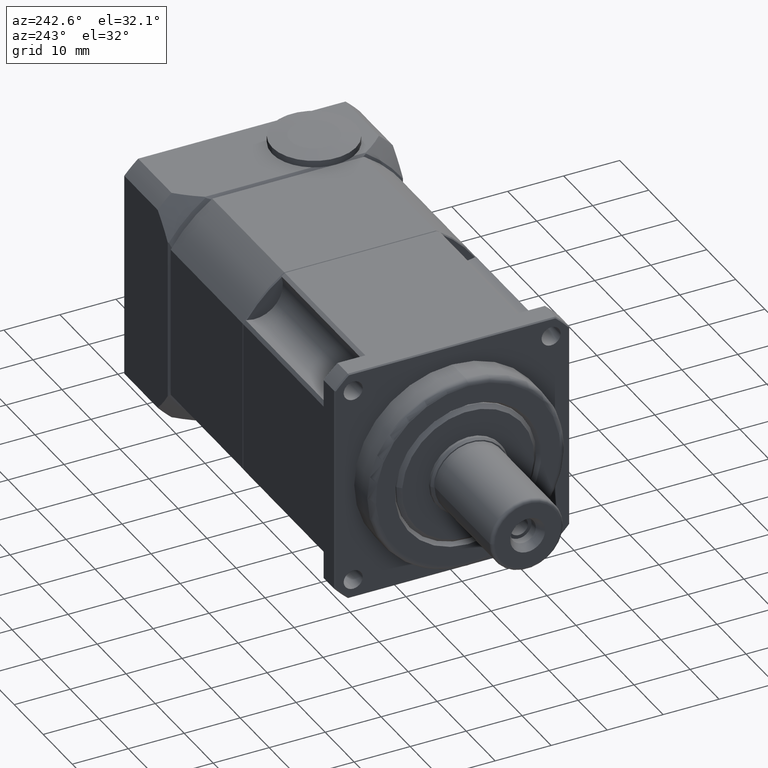
[diagram: clean part render]
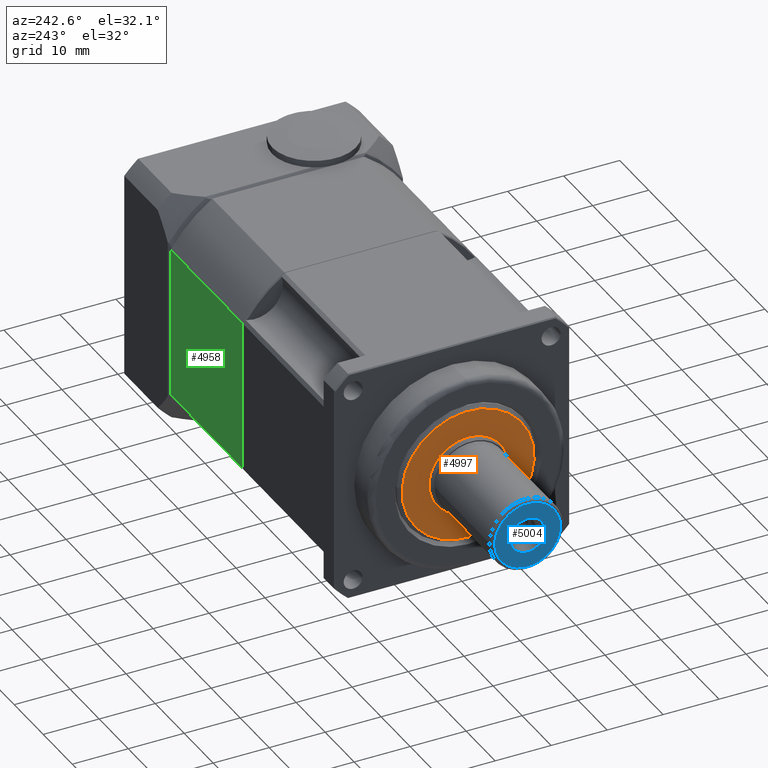
[diagram: same view with three faces highlighted in distinct colors, each labeled with its STEP entity id]
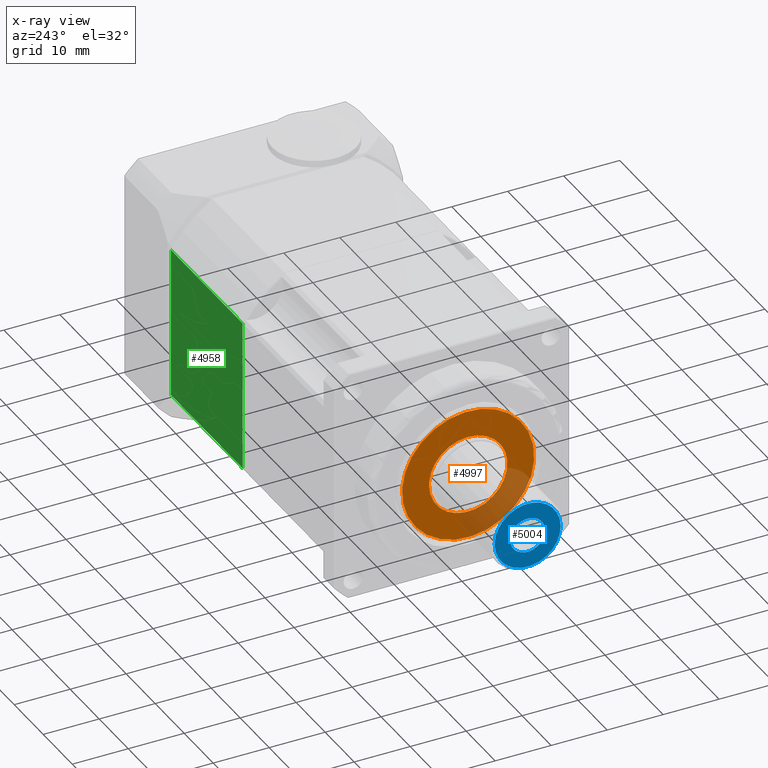
[diagram: x-ray of the same camera — body ghosted, the three highlighted faces saturated]
A machine part, auxiliary view with three faces highlighted in distinct colors.
The next image is the same camera in x-ray (body ghosted, the three faces saturated) — at least one of them is partly hidden behind the body in this view.
Their STEP definitions:

[orange] entity #4997 — the highlighted planar face has unit normal (-1, -0, 0).
#802=PLANE('',#5559);
#939=FACE_BOUND('',#1632,.T.);
#1210=FACE_OUTER_BOUND('',#1631,.T.);
#1631=EDGE_LOOP('',(#4069));
#1632=EDGE_LOOP('',(#4070));
#2012=CIRCLE('',#5558,11.8);
#2013=CIRCLE('',#5560,6.99999999999999);
#2407=VERTEX_POINT('',#8544);
#2408=VERTEX_POINT('',#8547);
#2996=EDGE_CURVE('',#2407,#2407,#2012,.T.);
#2997=EDGE_CURVE('',#2408,#2408,#2013,.T.);
#4069=ORIENTED_EDGE('',*,*,#2996,.F.);
#4070=ORIENTED_EDGE('',*,*,#2997,.F.);
#4997=ADVANCED_FACE('',(#1210,#939),#802,.T.);
#5558=AXIS2_PLACEMENT_3D('',#8545,#6796,#6797);
#5559=AXIS2_PLACEMENT_3D('',#8546,#6798,#6799);
#5560=AXIS2_PLACEMENT_3D('',#8548,#6800,#6801);
#6796=DIRECTION('center_axis',(1.,4.17746143278716E-17,-1.91716389710548E-15));
#6797=DIRECTION('ref_axis',(-8.27783148128878E-17,-0.997890386208803,-0.0649213147744789));
#6798=DIRECTION('center_axis',(-1.,-4.17746143278716E-17,1.91716389710548E-15));
#6799=DIRECTION('ref_axis',(2.1316282072803E-15,-0.0649213147744789,0.997890386208803));
#6800=DIRECTION('center_axis',(-1.,-4.17746143278716E-17,1.91716389710548E-15));
#6801=DIRECTION('ref_axis',(-6.39149226839442E-30,1.,5.55111512312658E-17));
#8544=CARTESIAN_POINT('',(-44.2840049856135,-27.0923785746486,-26.5816837797943));
#8545=CARTESIAN_POINT('Origin',(-44.2840049856135,-38.8674851319124,-27.3477552941332));
#8546=CARTESIAN_POINT('Origin',(-44.2840049856135,-26.3938553043024,-26.5362388594522));
#8547=CARTESIAN_POINT('',(-44.2840049856135,-31.8822524284508,-26.8933060907118));
#8548=CARTESIAN_POINT('Origin',(-44.2840049856135,-38.8674851319124,-27.3477552941332));

[blue] entity #5004 — the highlighted planar face has unit normal (-1, -0, 0).
#804=PLANE('',#5574);
#945=FACE_BOUND('',#1645,.T.);
#1217=FACE_OUTER_BOUND('',#1644,.T.);
#1644=EDGE_LOOP('',(#4082));
#1645=EDGE_LOOP('',(#4083));
#2019=CIRCLE('',#5572,5.9);
#2021=CIRCLE('',#5575,3.11602540378444);
#2414=VERTEX_POINT('',#8565);
#2416=VERTEX_POINT('',#8570);
#3003=EDGE_CURVE('',#2414,#2414,#2019,.T.);
#3005=EDGE_CURVE('',#2416,#2416,#2021,.T.);
#4082=ORIENTED_EDGE('',*,*,#3003,.F.);
#4083=ORIENTED_EDGE('',*,*,#3005,.T.);
#5004=ADVANCED_FACE('',(#1217,#945),#804,.T.);
#5572=AXIS2_PLACEMENT_3D('',#8566,#6824,#6825);
#5574=AXIS2_PLACEMENT_3D('',#8569,#6828,#6829);
#5575=AXIS2_PLACEMENT_3D('',#8571,#6830,#6831);
#6824=DIRECTION('center_axis',(1.,1.83697019872109E-16,-1.86712303103359E-15));
#6825=DIRECTION('ref_axis',(1.8369701987211E-16,-1.,1.28185868640837E-16));
#6828=DIRECTION('center_axis',(-1.,-1.83697019872109E-16,1.86712303103359E-15));
#6829=DIRECTION('ref_axis',(1.4210854715202E-15,0.,1.));
#6830=DIRECTION('center_axis',(1.,1.83697019872109E-16,-1.86712303103359E-15));
#6831=DIRECTION('ref_axis',(-1.86712303103359E-15,5.55111512312658E-17,
-1.));
#8565=CARTESIAN_POINT('',(-64.7840049856135,-32.9674851319125,-27.3477552941331));
#8566=CARTESIAN_POINT('Origin',(-64.7840049856135,-38.8674851319124,-27.3477552941331));
#8569=CARTESIAN_POINT('Origin',(-64.7840049856135,-32.3674851319125,-27.3477552941331));
#8570=CARTESIAN_POINT('',(-64.7840049856135,-35.751459728128,-27.3477552941331));
#8571=CARTESIAN_POINT('Origin',(-64.7840049856135,-38.8674851319124,-27.3477552941331));

[green] entity #4958 — the highlighted planar face has unit normal (-0, 1, -0).
#362=LINE('',#8356,#596);
#363=LINE('',#8361,#597);
#365=LINE('',#8367,#599);
#366=LINE('',#8368,#600);
#596=VECTOR('',#6602,27.1293199325011);
#597=VECTOR('',#6609,24.8);
#599=VECTOR('',#6615,24.8);
#600=VECTOR('',#6616,27.1293199325011);
#781=PLANE('',#5475);
#1171=FACE_OUTER_BOUND('',#1572,.T.);
#1572=EDGE_LOOP('',(#3930,#3931,#3932,#3933));
#2356=VERTEX_POINT('',#8343);
#2357=VERTEX_POINT('',#8351);
#2358=VERTEX_POINT('',#8360);
#2360=VERTEX_POINT('',#8366);
#2922=EDGE_CURVE('',#2357,#2356,#362,.T.);
#2924=EDGE_CURVE('',#2358,#2356,#363,.T.);
#2927=EDGE_CURVE('',#2357,#2360,#365,.T.);
#2928=EDGE_CURVE('',#2358,#2360,#366,.T.);
#3930=ORIENTED_EDGE('',*,*,#2922,.F.);
#3931=ORIENTED_EDGE('',*,*,#2927,.T.);
#3932=ORIENTED_EDGE('',*,*,#2928,.F.);
#3933=ORIENTED_EDGE('',*,*,#2924,.T.);
#4958=ADVANCED_FACE('',(#1171),#781,.T.);
#5475=AXIS2_PLACEMENT_3D('',#8365,#6613,#6614);
#6602=DIRECTION('',(1.14421499454692E-15,8.06505986333412E-15,1.));
#6609=DIRECTION('',(1.,3.14468195381056E-16,-1.14421499454692E-15));
#6613=DIRECTION('center_axis',(-3.14468195381065E-16,1.,-8.06505986333412E-15));
#6614=DIRECTION('ref_axis',(-1.06581410364015E-15,-8.17124146124115E-15,
-1.));
#6615=DIRECTION('',(-1.,-3.14468195381056E-16,1.14421499454692E-15));
#6616=DIRECTION('',(-1.14421499454692E-15,-8.06505986333412E-15,-1.));
#8343=CARTESIAN_POINT('',(17.7159950143863,-17.8674851319124,-13.7830953278829));
#8351=CARTESIAN_POINT('',(17.7159950143863,-17.8674851319126,-40.912415260384));
#8356=CARTESIAN_POINT('',(17.7159950143863,-17.8674851319124,-16.8477552941335));
#8360=CARTESIAN_POINT('',(-7.08400498561369,-17.8674851319124,-13.7830953278829));
#8361=CARTESIAN_POINT('',(18.2159950143863,-17.8674851319124,-13.7830953278829));
#8365=CARTESIAN_POINT('Origin',(18.2159950143863,-17.8674851319123,-6.34775529413346));
#8366=CARTESIAN_POINT('',(-7.08400498561372,-17.8674851319126,-40.912415260384));
#8367=CARTESIAN_POINT('',(18.2159950143863,-17.8674851319126,-40.912415260384));
#8368=CARTESIAN_POINT('',(-7.08400498561369,-17.8674851319124,-16.8477552941334));